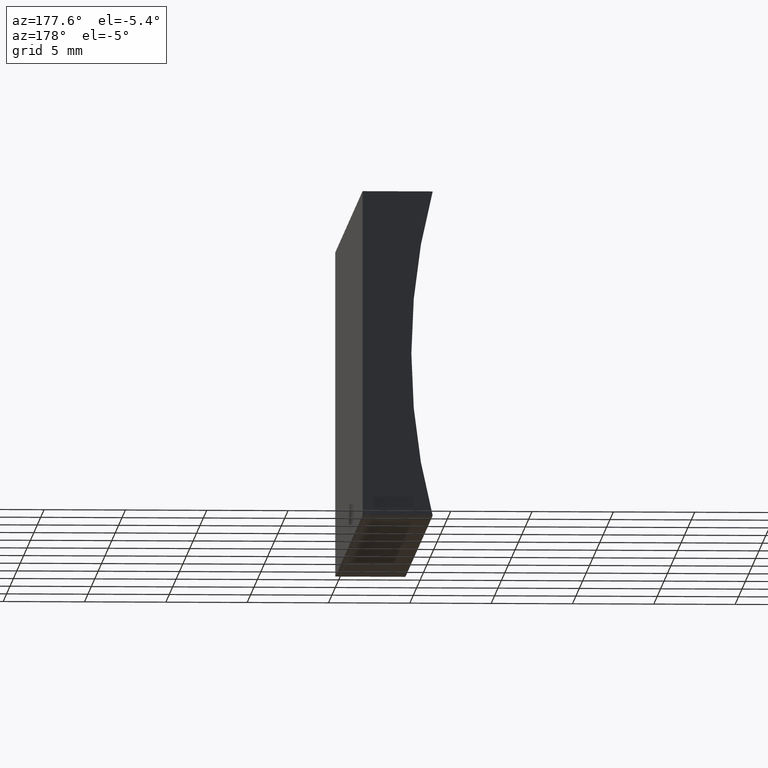
[diagram: clean part render]
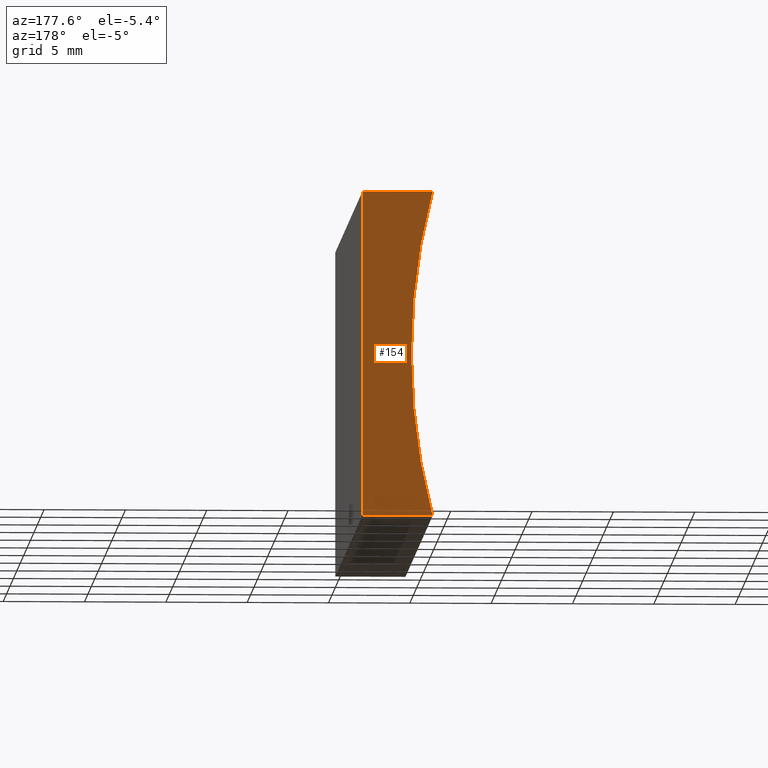
[diagram: same view with one face highlighted and labeled with its STEP entity id]
A machine part, auxiliary view. The second image highlights one B-rep face of the part: STEP entity #154.
In plain terms, the highlighted planar face has unit normal (0, 1, 0).
Its self-contained STEP definition (entity closure, byte-faithful):
#14 = DIRECTION ( 'NONE',  ( 0.0000000000000000000, 0.0000000000000000000, 1.000000000000000000 ) ) ;
#16 = VECTOR ( 'NONE', #65, 1000.000000000000000 ) ;
#20 = ORIENTED_EDGE ( 'NONE', *, *, #148, .T. ) ;
#26 = CARTESIAN_POINT ( 'NONE',  ( 0.0000000000000000000, 40.00000000000000000, 0.0000000000000000000 ) ) ;
#31 = VERTEX_POINT ( 'NONE', #26 ) ;
#33 = CARTESIAN_POINT ( 'NONE',  ( -41.78000000000000100, 40.00000000000000000, 10.00000000000000900 ) ) ;
#37 = LINE ( 'NONE', #49, #16 ) ;
#39 = CARTESIAN_POINT ( 'NONE',  ( -4.311501231034083200, 40.00000000000000000, -1.734723475976807100E-015 ) ) ;
#42 = ORIENTED_EDGE ( 'NONE', *, *, #194, .T. ) ;
#47 = DIRECTION ( 'NONE',  ( -0.0000000000000000000, -1.000000000000000000, -0.0000000000000000000 ) ) ;
#49 = CARTESIAN_POINT ( 'NONE',  ( 0.0000000000000000000, 40.00000000000000000, 0.0000000000000000000 ) ) ;
#57 = EDGE_LOOP ( 'NONE', ( #138, #61, #20, #42 ) ) ;
#60 = PLANE ( 'NONE',  #153 ) ;
#61 = ORIENTED_EDGE ( 'NONE', *, *, #132, .T. ) ;
#65 = DIRECTION ( 'NONE',  ( -1.000000000000000000, 0.0000000000000000000, 0.0000000000000000000 ) ) ;
#69 = VECTOR ( 'NONE', #84, 1000.000000000000000 ) ;
#75 = CARTESIAN_POINT ( 'NONE',  ( 0.0000000000000000000, 40.00000000000000000, 0.0000000000000000000 ) ) ;
#80 = CARTESIAN_POINT ( 'NONE',  ( 1.224646799147353300E-015, 40.00000000000000000, 20.00000000000000000 ) ) ;
#84 = DIRECTION ( 'NONE',  ( 1.000000000000000000, -0.0000000000000000000, -0.0000000000000000000 ) ) ;
#85 = FACE_OUTER_BOUND ( 'NONE', #57, .T. ) ;
#97 = DIRECTION ( 'NONE',  ( 0.0000000000000000000, -0.0000000000000000000, 1.000000000000000000 ) ) ;
#98 = CARTESIAN_POINT ( 'NONE',  ( 1.224646799147353300E-015, 40.00000000000000000, 20.00000000000000000 ) ) ;
#101 = VERTEX_POINT ( 'NONE', #98 ) ;
#122 = LINE ( 'NONE', #80, #69 ) ;
#126 = LINE ( 'NONE', #75, #134 ) ;
#130 = CARTESIAN_POINT ( 'NONE',  ( -4.311501231034082300, 40.00000000000000000, 20.00000000000000000 ) ) ;
#132 = EDGE_CURVE ( 'NONE', #184, #137, #156, .T. ) ;
#134 = VECTOR ( 'NONE', #174, 1000.000000000000000 ) ;
#137 = VERTEX_POINT ( 'NONE', #130 ) ;
#138 = ORIENTED_EDGE ( 'NONE', *, *, #139, .T. ) ;
#139 = EDGE_CURVE ( 'NONE', #31, #184, #37, .T. ) ;
#148 = EDGE_CURVE ( 'NONE', #137, #101, #122, .T. ) ;
#153 = AXIS2_PLACEMENT_3D ( 'NONE', #196, #182, #97 ) ;
#154 = ADVANCED_FACE ( 'NONE', ( #85 ), #60, .T. ) ;
#156 = CIRCLE ( 'NONE', #167, 38.78000000000000800 ) ;
#167 = AXIS2_PLACEMENT_3D ( 'NONE', #33, #47, #14 ) ;
#174 = DIRECTION ( 'NONE',  ( -6.123233995736766000E-017, -0.0000000000000000000, -1.000000000000000000 ) ) ;
#182 = DIRECTION ( 'NONE',  ( 0.0000000000000000000, 1.000000000000000000, 0.0000000000000000000 ) ) ;
#184 = VERTEX_POINT ( 'NONE', #39 ) ;
#194 = EDGE_CURVE ( 'NONE', #101, #31, #126, .T. ) ;
#196 = CARTESIAN_POINT ( 'NONE',  ( -41.78000000000000100, 40.00000000000000000, 10.00000000000000900 ) ) ;